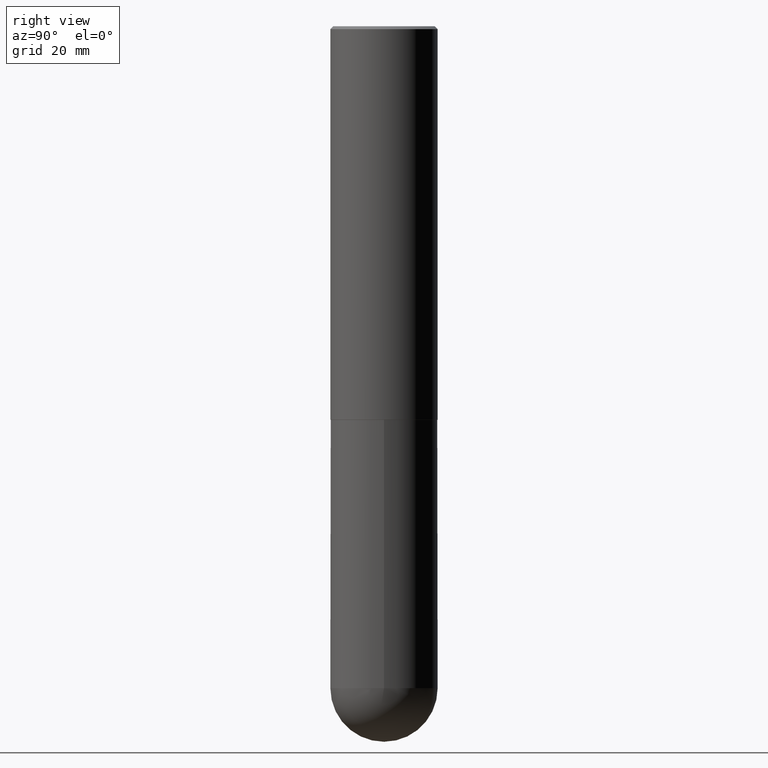
[diagram: clean part render]
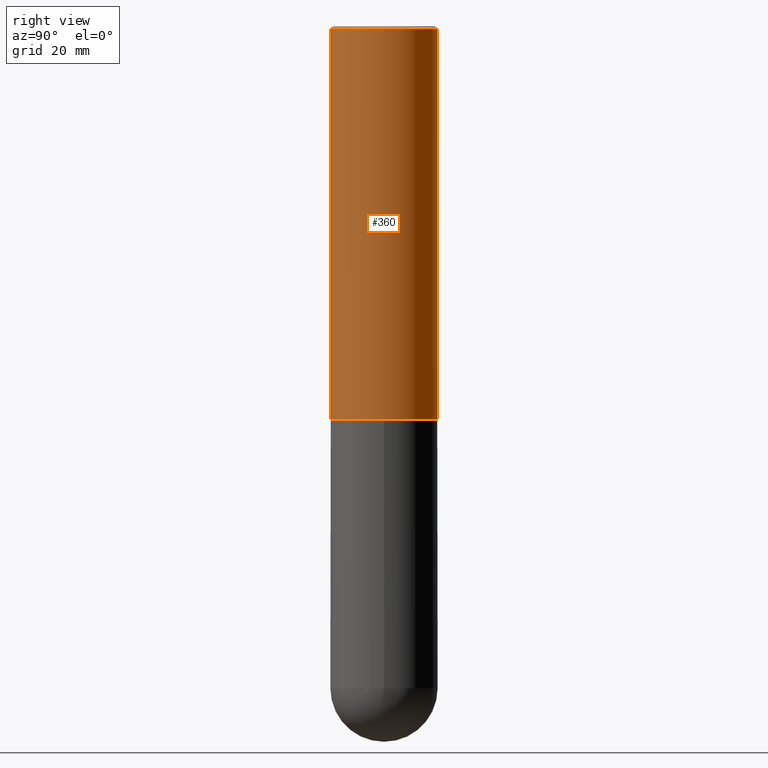
[diagram: same view with one face highlighted and labeled with its STEP entity id]
A machine part, right view. The second image highlights one B-rep face of the part: STEP entity #360.
In plain terms, the highlighted cylindrical surface (partial cylindrical patch) has radius 9.525 mm, axis along (-0, 0, 1).
Its self-contained STEP definition (entity closure, byte-faithful):
#4 = VECTOR ( 'NONE', #173, 39.37007874015748143 ) ;
#9 = DIRECTION ( 'NONE',  ( -2.445545483075457236E-29, 3.491371533172028921E-15, 1.000000000000000000 ) ) ;
#38 = CYLINDRICAL_SURFACE ( 'NONE', #176, 0.3750000000000002220 ) ;
#40 = EDGE_CURVE ( 'NONE', #191, #312, #349, .T. ) ;
#41 = EDGE_LOOP ( 'NONE', ( #277, #225, #193, #344 ) ) ;
#50 = VECTOR ( 'NONE', #278, 39.37007874015748143 ) ;
#55 = EDGE_CURVE ( 'NONE', #328, #191, #265, .T. ) ;
#63 = EDGE_CURVE ( 'NONE', #328, #388, #175, .T. ) ;
#132 = DIRECTION ( 'NONE',  ( -6.982962677686265922E-15, -1.000000000000000000, 3.494488891895535640E-15 ) ) ;
#134 = AXIS2_PLACEMENT_3D ( 'NONE', #293, #234, #132 ) ;
#150 = CARTESIAN_POINT ( 'NONE',  ( -2.572686749164324336E-15, -0.3750000000000001665, -0.01999999999999877570 ) ) ;
#155 = LINE ( 'NONE', #302, #50 ) ;
#160 = DIRECTION ( 'NONE',  ( -2.445545483075457236E-29, 3.491371533172028921E-15, 1.000000000000000000 ) ) ;
#166 = DIRECTION ( 'NONE',  ( -6.982962677686266711E-15, -1.000000000000000000, 3.491371533172028921E-15 ) ) ;
#173 = DIRECTION ( 'NONE',  ( -2.445545483075457236E-29, 3.491371533172028526E-15, 1.000000000000000000 ) ) ;
#175 = CIRCLE ( 'NONE', #290, 0.3750000000000003886 ) ;
#176 = AXIS2_PLACEMENT_3D ( 'NONE', #352, #160, #166 ) ;
#191 = VERTEX_POINT ( 'NONE', #150 ) ;
#193 = ORIENTED_EDGE ( 'NONE', *, *, #40, .F. ) ;
#211 = EDGE_CURVE ( 'NONE', #388, #312, #155, .T. ) ;
#224 = CARTESIAN_POINT ( 'NONE',  ( 2.618611004132351200E-15, 0.3750000000000000555, -0.02000000000000139513 ) ) ;
#225 = ORIENTED_EDGE ( 'NONE', *, *, #211, .T. ) ;
#234 = DIRECTION ( 'NONE',  ( -2.445545483075457236E-29, 3.491371533172028921E-15, 1.000000000000000000 ) ) ;
#265 = LINE ( 'NONE', #382, #4 ) ;
#266 = CARTESIAN_POINT ( 'NONE',  ( 6.722804532974430980E-29, -9.597780344689909299E-15, -2.749000000000000110 ) ) ;
#277 = ORIENTED_EDGE ( 'NONE', *, *, #63, .T. ) ;
#278 = DIRECTION ( 'NONE',  ( -2.445545483075457236E-29, 3.491371533172028526E-15, 1.000000000000000000 ) ) ;
#290 = AXIS2_PLACEMENT_3D ( 'NONE', #266, #9, #392 ) ;
#292 = CARTESIAN_POINT ( 'NONE',  ( -2.618611004132284935E-15, -0.3750000000000099920, -2.748999999999999222 ) ) ;
#293 = CARTESIAN_POINT ( 'NONE',  ( 4.891090966150935106E-31, -6.982743066344087079E-17, -0.02000000000000008715 ) ) ;
#302 = CARTESIAN_POINT ( 'NONE',  ( 2.664535259100376880E-15, 0.3750000000000002220, -1.309264324939511634E-15 ) ) ;
#312 = VERTEX_POINT ( 'NONE', #224 ) ;
#328 = VERTEX_POINT ( 'NONE', #292 ) ;
#344 = ORIENTED_EDGE ( 'NONE', *, *, #55, .F. ) ;
#347 = FACE_OUTER_BOUND ( 'NONE', #41, .T. ) ;
#349 = CIRCLE ( 'NONE', #134, 0.3750000000000001110 ) ;
#352 = CARTESIAN_POINT ( 'NONE',  ( 0.000000000000000000, 0.000000000000000000, 0.000000000000000000 ) ) ;
#360 = ADVANCED_FACE ( 'NONE', ( #347 ), #38, .T. ) ;
#374 = CARTESIAN_POINT ( 'NONE',  ( 2.664535259100411196E-15, 0.3749999999999907296, -2.749000000000000998 ) ) ;
#382 = CARTESIAN_POINT ( 'NONE',  ( -2.618611004132351594E-15, -0.3750000000000002220, 1.309264324939511634E-15 ) ) ;
#388 = VERTEX_POINT ( 'NONE', #374 ) ;
#392 = DIRECTION ( 'NONE',  ( -6.982962677686265922E-15, -1.000000000000000000, 2.913971193241877611E-15 ) ) ;